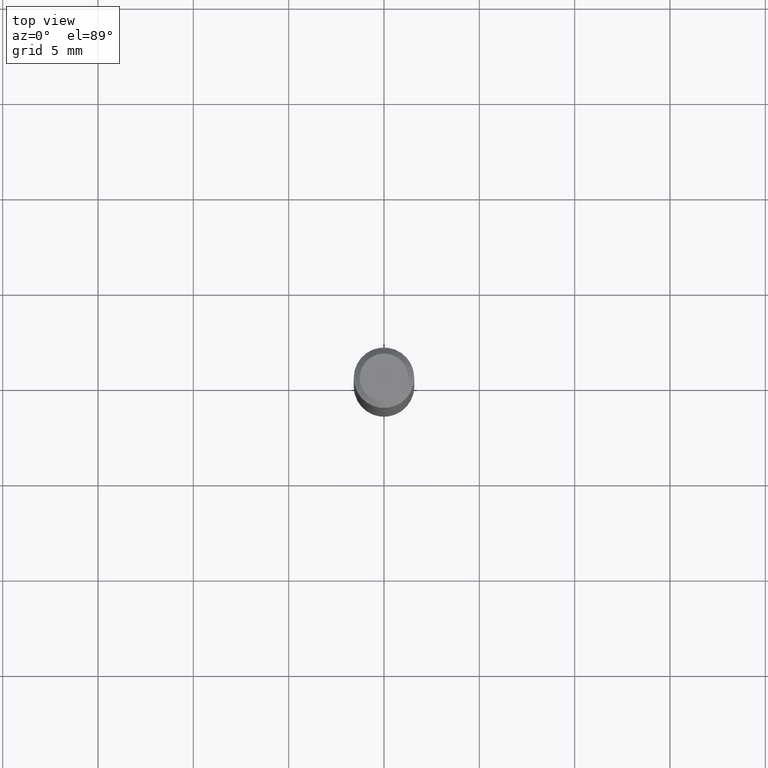
[diagram: clean part render]
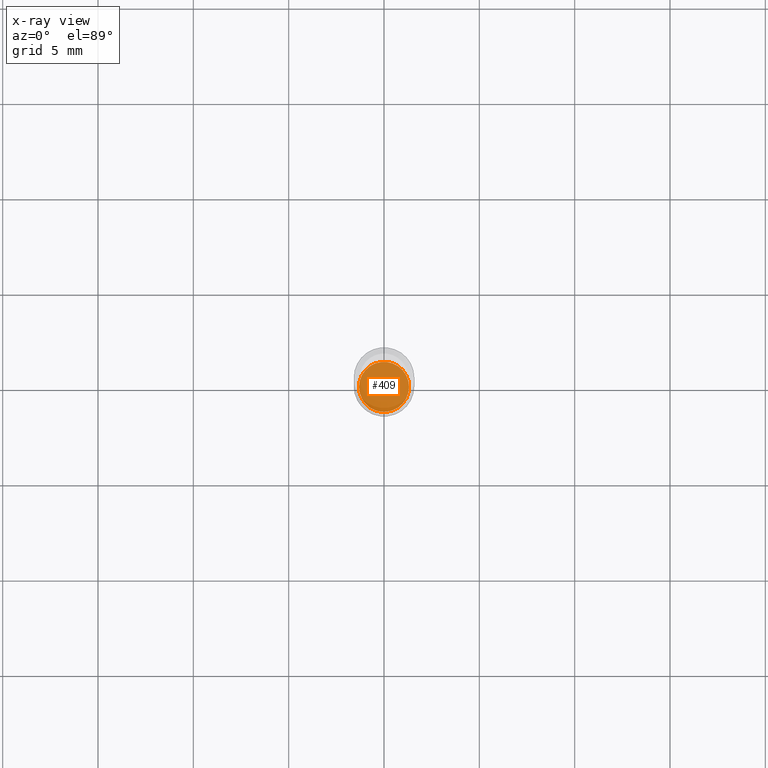
[diagram: x-ray — body ghosted, one internal face saturated and labeled with its STEP entity id]
A machine part, top view, then the same camera in x-ray: the body is ghosted and one INTERNAL B-rep face — a face not visible from any outside direction — is saturated and labeled: STEP entity #409.
In plain terms, the highlighted planar face has unit normal (-0, 0, 1).
Its self-contained STEP definition (entity closure, byte-faithful):
#48 = DIRECTION ( 'NONE',  ( 1.000000000000000000, -6.982962677686269077E-15, 0.000000000000000000 ) ) ;
#52 = EDGE_CURVE ( 'NONE', #135, #433, #148, .T. ) ;
#85 = DIRECTION ( 'NONE',  ( 1.000000000000000000, -6.982962677686269077E-15, 0.000000000000000000 ) ) ;
#96 = ORIENTED_EDGE ( 'NONE', *, *, #162, .F. ) ;
#121 = CARTESIAN_POINT ( 'NONE',  ( 2.690015686803650369E-29, -3.840629472727460101E-15, -1.100000000000000089 ) ) ;
#127 = ORIENTED_EDGE ( 'NONE', *, *, #52, .F. ) ;
#130 = AXIS2_PLACEMENT_3D ( 'NONE', #242, #166, #48 ) ;
#135 = VERTEX_POINT ( 'NONE', #194 ) ;
#148 = CIRCLE ( 'NONE', #130, 0.05164999999999999453 ) ;
#151 = CARTESIAN_POINT ( 'NONE',  ( -0.05164999999999999453, -3.470984922533256947E-15, -1.100000000000000089 ) ) ;
#162 = EDGE_CURVE ( 'NONE', #433, #135, #348, .T. ) ;
#166 = DIRECTION ( 'NONE',  ( -2.445468806185136597E-29, 3.491481338843145583E-15, 1.000000000000000000 ) ) ;
#194 = CARTESIAN_POINT ( 'NONE',  ( 0.05164999999999999453, -4.201299495029956149E-15, -1.100000000000000089 ) ) ;
#199 = AXIS2_PLACEMENT_3D ( 'NONE', #121, #313, #85 ) ;
#242 = CARTESIAN_POINT ( 'NONE',  ( 2.690015686803650369E-29, -3.840629472727460101E-15, -1.100000000000000089 ) ) ;
#262 = AXIS2_PLACEMENT_3D ( 'NONE', #335, #263, #450 ) ;
#263 = DIRECTION ( 'NONE',  ( -2.438088387897960049E-29, 3.491481338843145188E-15, 1.000000000000000000 ) ) ;
#298 = EDGE_LOOP ( 'NONE', ( #127, #96 ) ) ;
#305 = FACE_OUTER_BOUND ( 'NONE', #298, .T. ) ;
#313 = DIRECTION ( 'NONE',  ( -2.445468806185136597E-29, 3.491481338843145583E-15, 1.000000000000000000 ) ) ;
#335 = CARTESIAN_POINT ( 'NONE',  ( 2.690015686803650369E-29, -3.840629472727460101E-15, -1.100000000000000089 ) ) ;
#348 = CIRCLE ( 'NONE', #199, 0.05164999999999999453 ) ;
#409 = ADVANCED_FACE ( 'NONE', ( #305 ), #416, .F. ) ;
#416 = PLANE ( 'NONE',  #262 ) ;
#433 = VERTEX_POINT ( 'NONE', #151 ) ;
#450 = DIRECTION ( 'NONE',  ( 1.000000000000000000, -6.982962677686265922E-15, 4.876176775795935793E-29 ) ) ;